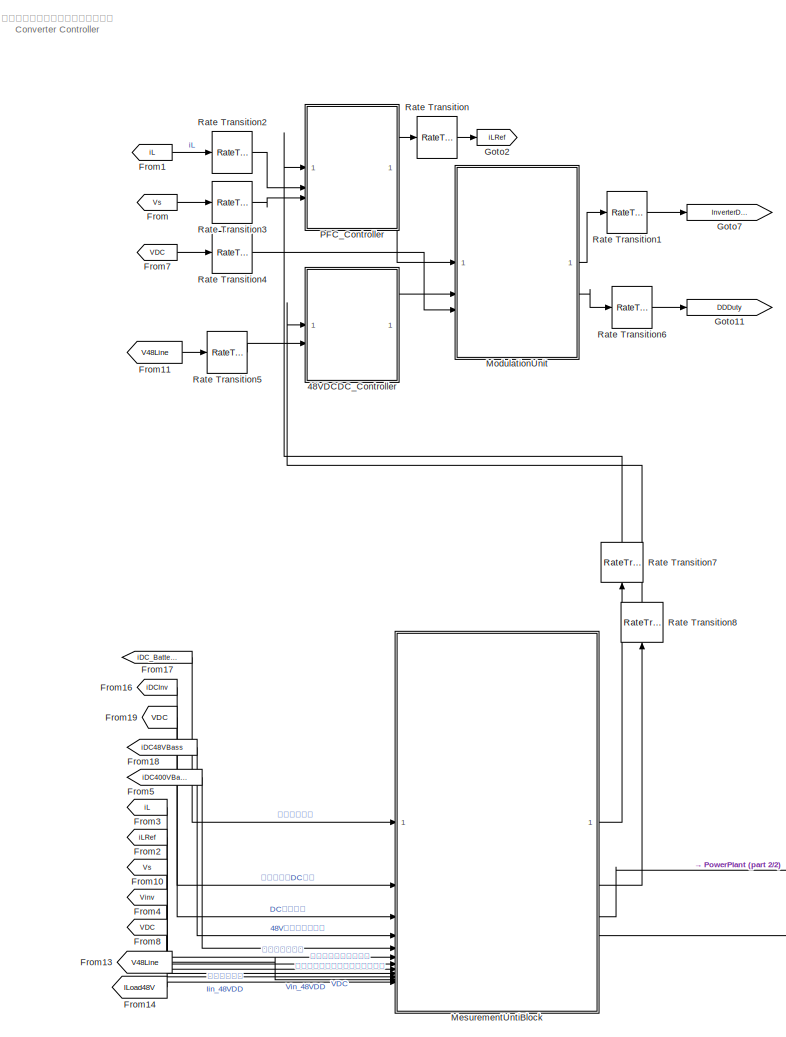
[diagram: root canvas - part 1/2, left side, full height]
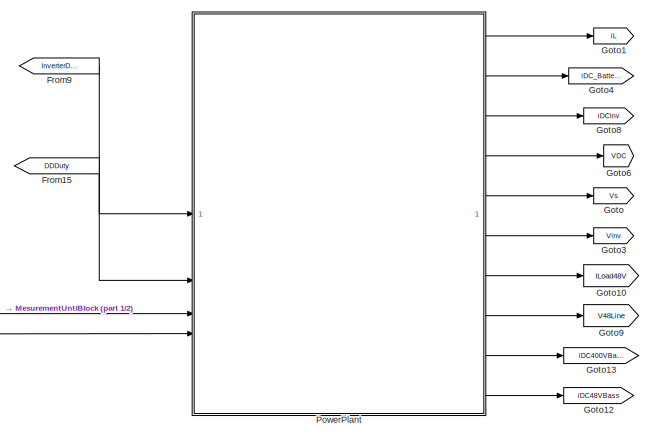
[diagram: root canvas - part 2/2, bottom right region]
MODEL slx_406169b64d37
KIND model
CONFIG AbsTol = 1e-3
CONFIG EnableMultiTasking = off
CONFIG FixedStep = auto
CONFIG MaxStep = 1e-3
CONFIG MinStep = auto
CONFIG RelTol = 1e-3
CONFIG SampleTimeConstraint = Unconstrained
CONFIG SolverName = ode23t
CONFIG StartTime = 0.0
CONFIG StopTime = 2
BLOCK [ModelReference] 48VDCDC_Controller
  ModelNameDialog = x48VDCDC_Controller_Unit.slx
  ModelReferenceVersion = 5.0
BLOCK [From] From
  GotoTag = Vs
BLOCK [From] From1
  GotoTag = iL
BLOCK [From] From10
  GotoTag = Vs
BLOCK [From] From11
  GotoTag = V48Line
BLOCK [From] From13
  GotoTag = V48Line
BLOCK [From] From14
  GotoTag = ILoad48V
  NameLocation = top
BLOCK [From] From15
  GotoTag = DDDuty
BLOCK [From] From16
  GotoTag = iDCInv
BLOCK [From] From17
  GotoTag = iDC_Battery
BLOCK [From] From18
  GotoTag = iDC48VBass
BLOCK [From] From19
  GotoTag = VDC
  NameLocation = top
BLOCK [From] From2
  GotoTag = iLRef
BLOCK [From] From3
  GotoTag = iL
BLOCK [From] From4
  GotoTag = Vinv
BLOCK [From] From5
  GotoTag = iDC400VBass
BLOCK [From] From7
  GotoTag = VDC
BLOCK [From] From8
  GotoTag = VDC
BLOCK [From] From9
  GotoTag = InverterDuty
BLOCK [Goto] Goto
  GotoTag = Vs
BLOCK [Goto] Goto1
  GotoTag = iL
BLOCK [Goto] Goto10
  GotoTag = ILoad48V
BLOCK [Goto] Goto11
  GotoTag = DDDuty
BLOCK [Goto] Goto12
  GotoTag = iDC48VBass
BLOCK [Goto] Goto13
  GotoTag = iDC400VBass
BLOCK [Goto] Goto2
  GotoTag = iLRef
BLOCK [Goto] Goto3
  GotoTag = Vinv
BLOCK [Goto] Goto4
  GotoTag = iDC_Battery
BLOCK [Goto] Goto6
  GotoTag = VDC
BLOCK [Goto] Goto7
  GotoTag = InverterDuty
BLOCK [Goto] Goto8
  GotoTag = iDCInv
BLOCK [Goto] Goto9
  GotoTag = V48Line
BLOCK [ModelReference] MesurementUntiBlock
  ModelNameDialog = MesurementUnit.slx
  ModelReferenceVersion = 5.0
BLOCK [ModelReference] ModulationUnit
  ModelNameDialog = ModulationUnit
  ModelReferenceVersion = 5.0
  PortSchema = {"entries":[{"content":{"sides":[{"content":{"connectorIds":["In1","In3","In2"]},"type":"ConnectorPlacement.EquallySpacedRectSide","uuid":"118e906f-2ade-41a6-9a4e-068f3bfaf8f6"},{"content":{"connectorIds":["Out1","Out2"],"side":"RIGHT"},"type":"ConnectorPlacement.EquallySpacedRectSide","uuid":"d4189a35-2248-4a82-9ac1-3c517fda069d"},{"content":{"connectorIds":[],"side":"TOP"},"type":"ConnectorPlace...<+259ch>
BLOCK [ModelReference] PFC_Controller
  ModelNameDialog = PFC_ControllerUnit.slx
  ModelReferenceVersion = 5.0
BLOCK [ModelReference] PowerPlant
  ModelNameDialog = PowerPlant_Unit.slx
  ModelReferenceVersion = 5.0
  PortSchema = {"entries":[{"content":{"sides":[{"content":{"connectorIds":["In1","In2","In3","In4"]},"type":"ConnectorPlacement.EquallySpacedRectSide","uuid":"d29d321e-d4c1-4367-9f49-8ab499eecf0c"},{"content":{"connectorIds":["Out2","Out1","Out3","Out4","Out5","Out6","Out7","Out8","Out9","Out10"],"side":"RIGHT"},"type":"ConnectorPlacement.EquallySpacedRectSide","uuid":"4d8fa41c-fb31-4713-93b3-c48cd1c08f8c"},{"c...<+322ch>
BLOCK [RateTransition] Rate Transition
BLOCK [RateTransition] Rate Transition1
  Deterministic = off
BLOCK [RateTransition] Rate Transition2
  Deterministic = off
BLOCK [RateTransition] Rate Transition3
  Deterministic = off
BLOCK [RateTransition] Rate Transition4
  Deterministic = off
BLOCK [RateTransition] Rate Transition5
  Deterministic = off
BLOCK [RateTransition] Rate Transition6
  Deterministic = off
BLOCK [RateTransition] Rate Transition7
  Deterministic = off
  NameLocation = right
BLOCK [RateTransition] Rate Transition8
  Deterministic = off
  NameLocation = right
ANNOTATION (root): 電力供給システム電力コントローラ Converter Controller
LINE 48VDCDC_Controller:1 -> ModulationUnit:2
LINE From10:1 -> MesurementUntiBlock:8
LINE From11:1 -> Rate Transition5:1
LINE From13:1 -> MesurementUntiBlock:11
LINE From14:1 -> MesurementUntiBlock:12
LINE From15:1 -> PowerPlant:2
LINE From16:1 -> MesurementUntiBlock:2
LINE From17:1 -> MesurementUntiBlock:1
LINE From18:1 -> MesurementUntiBlock:4
LINE From19:1 -> MesurementUntiBlock:3
LINE From1:1 -> Rate Transition2:1
LINE From2:1 -> MesurementUntiBlock:7
LINE From3:1 -> MesurementUntiBlock:6
LINE From4:1 -> MesurementUntiBlock:9
LINE From5:1 -> MesurementUntiBlock:5
LINE From7:1 -> Rate Transition4:1
LINE From8:1 -> MesurementUntiBlock:10
LINE From9:1 -> PowerPlant:1
LINE From:1 -> Rate Transition3:1
LINE MesurementUntiBlock:1 -> Rate Transition7:1
LINE MesurementUntiBlock:2 -> Rate Transition8:1
LINE MesurementUntiBlock:3 -> PowerPlant:3
LINE MesurementUntiBlock:4 -> PowerPlant:4
LINE ModulationUnit:1 -> Rate Transition1:1
LINE ModulationUnit:2 -> Rate Transition6:1
LINE PFC_Controller:1 -> Rate Transition:1
LINE PFC_Controller:2 -> ModulationUnit:1
LINE PowerPlant:1 -> Goto4:1
LINE PowerPlant:10 -> Goto12:1
LINE PowerPlant:2 -> Goto1:1
LINE PowerPlant:3 -> Goto8:1
LINE PowerPlant:4 -> Goto6:1
LINE PowerPlant:5 -> Goto:1
LINE PowerPlant:6 -> Goto3:1
LINE PowerPlant:7 -> Goto10:1
LINE PowerPlant:8 -> Goto9:1
LINE PowerPlant:9 -> Goto13:1
LINE Rate Transition1:1 -> Goto7:1
LINE Rate Transition2:1 -> PFC_Controller:2
LINE Rate Transition3:1 -> PFC_Controller:3
LINE Rate Transition4:1 -> ModulationUnit:3
LINE Rate Transition5:1 -> 48VDCDC_Controller:2
LINE Rate Transition6:1 -> Goto11:1
LINE Rate Transition7:1 -> PFC_Controller:1
LINE Rate Transition8:1 -> 48VDCDC_Controller:1
LINE Rate Transition:1 -> Goto2:1
